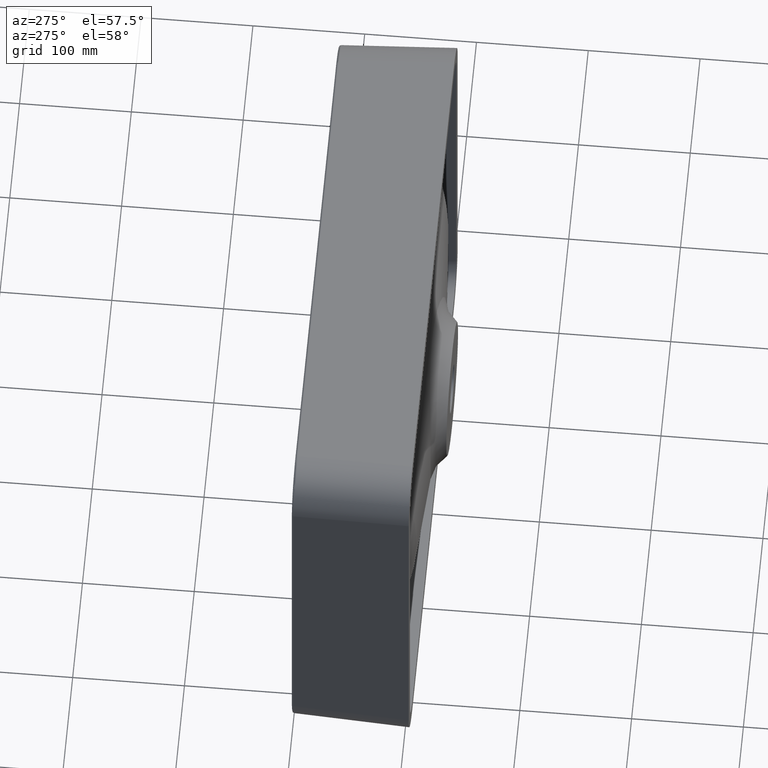
[diagram: clean part render]
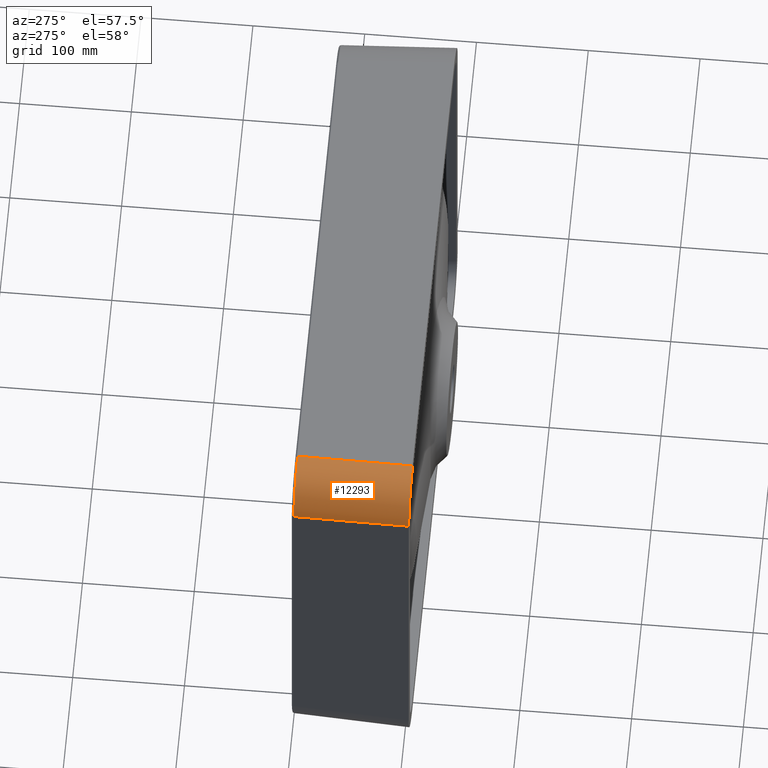
[diagram: same view with one face highlighted and labeled with its STEP entity id]
A machine part, auxiliary view. The second image highlights one B-rep face of the part: STEP entity #12293.
In plain terms, the highlighted cylindrical surface (partial cylindrical patch) has radius 39 mm, axis along (-0.0349, -0.9988, 0.0349).
Its self-contained STEP definition (entity closure, byte-faithful):
#107 =( BOUNDED_CURVE ( )  B_SPLINE_CURVE ( 3, ( #3924, #5457, #12881, #14106 ),
 .UNSPECIFIED., .F., .T. ) 
 B_SPLINE_CURVE_WITH_KNOTS ( ( 4, 4 ),
 ( 5.498396131367751849, 7.067974482991421503 ),
 .UNSPECIFIED. ) 
 CURVE ( )  GEOMETRIC_REPRESENTATION_ITEM ( )  RATIONAL_B_SPLINE_CURVE ( ( 1.000000000000000000, 0.8050248461936606592, 0.8050248461936606592, 1.000000000000000000 ) ) 
 REPRESENTATION_ITEM ( '' )  );
#231 = VERTEX_POINT ( 'NONE', #3066 ) ;
#411 = CARTESIAN_POINT ( 'NONE',  ( -246.4007233077899741, 98.06979899340500140, 157.4244810540465949 ) ) ;
#682 = CARTESIAN_POINT ( 'NONE',  ( -234.9867167983486524, 98.09865062440456995, 184.9867167983501020 ) ) ;
#1397 = AXIS2_PLACEMENT_3D ( 'NONE', #1783, #5593, #11643 ) ;
#1783 = CARTESIAN_POINT ( 'NONE',  ( -211.0711720803827518, -7.718849252729692800, 161.0711720803840592 ) ) ;
#1917 = VECTOR ( 'NONE', #14601, 1000.000000000000000 ) ;
#1985 = DIRECTION ( 'NONE',  ( -0.03487826274237457169, -0.9987827659587182882, 0.03487826274237482149 ) ) ;
#2157 = CARTESIAN_POINT ( 'NONE',  ( -217.9033238649257669, 98.08852010763781948, 196.4000695520765305 ) ) ;
#2411 = ORIENTED_EDGE ( 'NONE', *, *, #6360, .F. ) ;
#2489 = EDGE_CURVE ( 'NONE', #11932, #14791, #10727, .T. ) ;
#3066 = CARTESIAN_POINT ( 'NONE',  ( -249.9999999999994884, -4.999999999967030817, 161.0237577462561376 ) ) ;
#3200 = CARTESIAN_POINT ( 'NONE',  ( -211.0711720803826097, -6.357768881332150457, 200.0474143341288027 ) ) ;
#3499 = EDGE_CURVE ( 'NONE', #3552, #231, #107, .T. ) ;
#3552 = VERTEX_POINT ( 'NONE', #10233 ) ;
#3924 = CARTESIAN_POINT ( 'NONE',  ( -211.0237577462546028, -4.999999999995452526, 200.0000000000007390 ) ) ;
#4034 = ORIENTED_EDGE ( 'NONE', *, *, #10861, .F. ) ;
#4507 = CARTESIAN_POINT ( 'NONE',  ( -227.5811022664779557, 98.09865062440458416, 192.3923313302207134 ) ) ;
#4740 = LINE ( 'NONE', #9674, #1917 ) ;
#5055 = CARTESIAN_POINT ( 'NONE',  ( -246.4007233077899741, 98.06979899340500140, 157.4244810540465949 ) ) ;
#5457 = CARTESIAN_POINT ( 'NONE',  ( -233.8612673724565241, -4.999999999999990230, 200.0000000000007674 ) ) ;
#5593 = DIRECTION ( 'NONE',  ( -0.03487826274237457169, -0.9987827659587183993, 0.03487826274237483537 ) ) ;
#6020 =( BOUNDED_CURVE ( )  B_SPLINE_CURVE ( 3, ( #9445, #2157, #4507, #8140 ),
 .UNSPECIFIED., .F., .T. ) 
 B_SPLINE_CURVE_WITH_KNOTS ( ( 4, 4 ),
 ( 5.498396131367750073, 6.283185307179586232 ),
 .UNSPECIFIED. ) 
 CURVE ( )  GEOMETRIC_REPRESENTATION_ITEM ( )  RATIONAL_B_SPLINE_CURVE ( ( 1.000000000000000000, 0.9493306762732178772, 0.9493306762732178772, 1.000000000000000000 ) ) 
 REPRESENTATION_ITEM ( '' )  );
#6272 = CARTESIAN_POINT ( 'NONE',  ( -242.3923313302193492, 98.09865062440458416, 177.5811022664794052 ) ) ;
#6360 = EDGE_CURVE ( 'NONE', #14549, #3552, #12896, .T. ) ;
#7590 = ORIENTED_EDGE ( 'NONE', *, *, #2489, .T. ) ;
#7846 = CYLINDRICAL_SURFACE ( 'NONE', #1397, 39.00000000000002842 ) ;
#8140 = CARTESIAN_POINT ( 'NONE',  ( -234.9867167983486524, 98.09865062440456995, 184.9867167983501020 ) ) ;
#9445 = CARTESIAN_POINT ( 'NONE',  ( -207.4244810540450601, 98.06979899340501561, 196.4007233077912247 ) ) ;
#9674 = CARTESIAN_POINT ( 'NONE',  ( -249.5608170493570697, 7.576554212133412847, 160.5845747956136904 ) ) ;
#10233 = CARTESIAN_POINT ( 'NONE',  ( -211.0237577462546028, -4.999999999995452526, 200.0000000000007390 ) ) ;
#10304 = EDGE_LOOP ( 'NONE', ( #2411, #10474, #7590, #4034, #13011 ) ) ;
#10474 = ORIENTED_EDGE ( 'NONE', *, *, #11598, .T. ) ;
#10727 =( BOUNDED_CURVE ( )  B_SPLINE_CURVE ( 3, ( #13532, #6272, #11192, #5055 ),
 .UNSPECIFIED., .F., .T. ) 
 B_SPLINE_CURVE_WITH_KNOTS ( ( 4, 4 ),
 ( 0.000000000000000000, 0.7847891758118356043 ),
 .UNSPECIFIED. ) 
 CURVE ( )  GEOMETRIC_REPRESENTATION_ITEM ( )  RATIONAL_B_SPLINE_CURVE ( ( 1.000000000000000000, 0.9493306762732178772, 0.9493306762732178772, 1.000000000000000000 ) ) 
 REPRESENTATION_ITEM ( '' )  );
#10861 = EDGE_CURVE ( 'NONE', #231, #14791, #4740, .T. ) ;
#11192 = CARTESIAN_POINT ( 'NONE',  ( -246.4000695520751378, 98.08852010763781948, 167.9033238649273301 ) ) ;
#11598 = EDGE_CURVE ( 'NONE', #14549, #11932, #6020, .T. ) ;
#11643 = DIRECTION ( 'NONE',  ( -3.558407130208832679E-15, -0.03489949670250104552, -0.9993908270190956511 ) ) ;
#11932 = VERTEX_POINT ( 'NONE', #682 ) ;
#11973 = CARTESIAN_POINT ( 'NONE',  ( -207.4244810540450601, 98.06979899340501561, 196.4007233077912247 ) ) ;
#12293 = ADVANCED_FACE ( 'NONE', ( #13995 ), #7846, .T. ) ;
#12881 = CARTESIAN_POINT ( 'NONE',  ( -249.9999999999993179, -4.999999999999990230, 183.8612673724580588 ) ) ;
#12896 = LINE ( 'NONE', #3200, #13776 ) ;
#13011 = ORIENTED_EDGE ( 'NONE', *, *, #3499, .F. ) ;
#13532 = CARTESIAN_POINT ( 'NONE',  ( -234.9867167983486524, 98.09865062440456995, 184.9867167983501020 ) ) ;
#13776 = VECTOR ( 'NONE', #1985, 1000.000000000000000 ) ;
#13995 = FACE_OUTER_BOUND ( 'NONE', #10304, .T. ) ;
#14106 = CARTESIAN_POINT ( 'NONE',  ( -249.9999999999994884, -4.999999999967030817, 161.0237577462561376 ) ) ;
#14549 = VERTEX_POINT ( 'NONE', #11973 ) ;
#14601 = DIRECTION ( 'NONE',  ( 0.03487826274237455781, 0.9987827659587182882, -0.03487826274237482843 ) ) ;
#14791 = VERTEX_POINT ( 'NONE', #411 ) ;